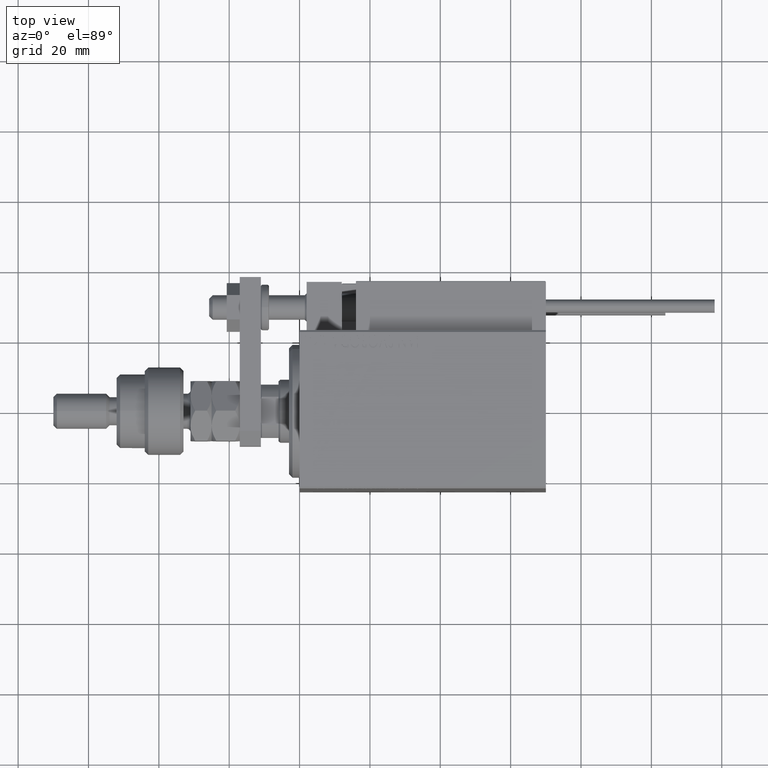
[diagram: clean part render]
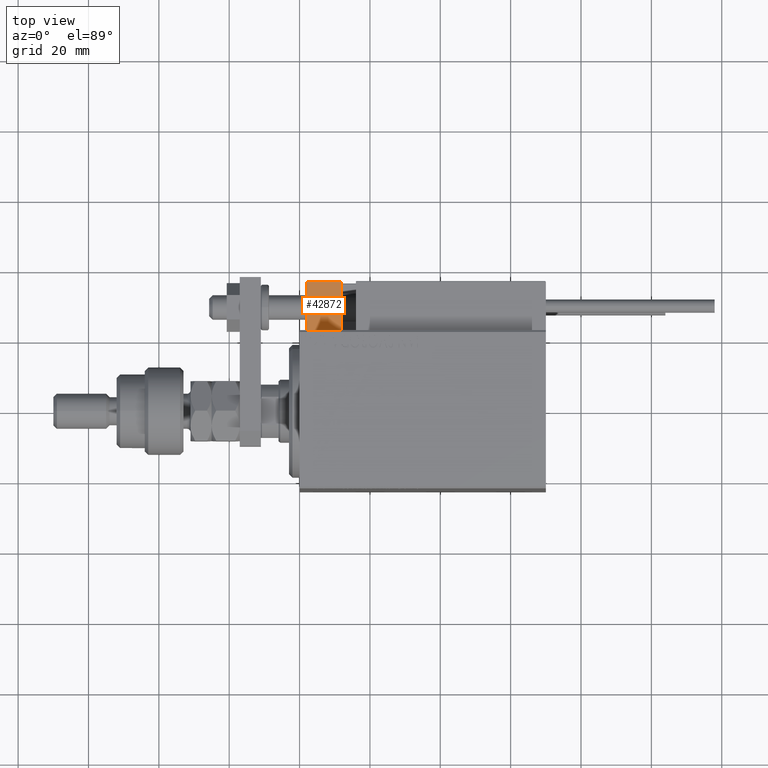
[diagram: same view with one face highlighted and labeled with its STEP entity id]
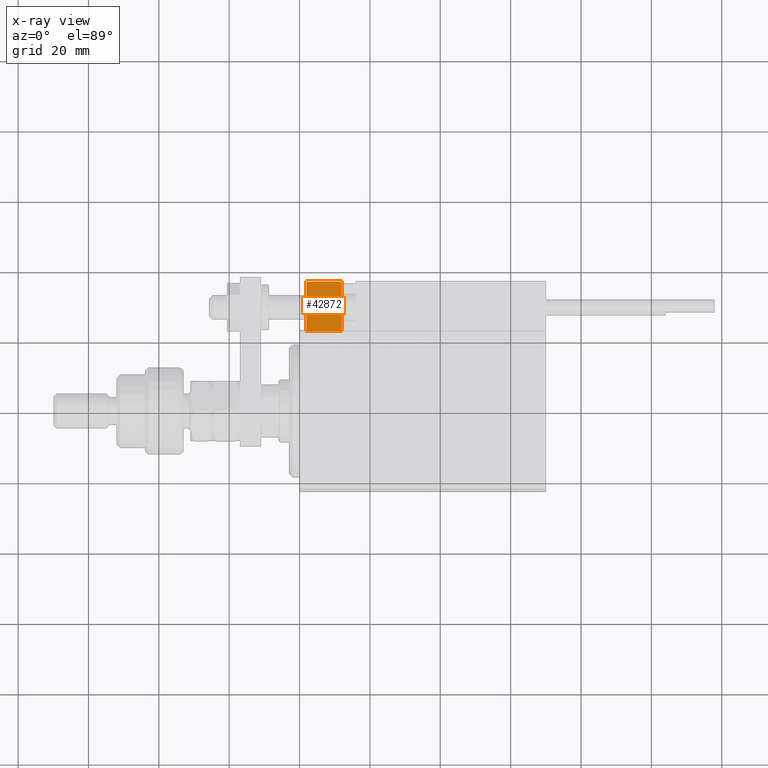
[diagram: x-ray of the same camera — body ghosted, the highlighted face saturated]
A machine part, top view. The second image highlights one B-rep face of the part: STEP entity #42872.
The next image is the same camera in x-ray: the body ghosted, the highlighted face saturated — about 0% of this face is hidden behind the body in this view.
In plain terms, the highlighted planar face has unit normal (0, 0, 1).
Its self-contained STEP definition (entity closure, byte-faithful):
#1140 = ORIENTED_EDGE ( 'NONE', *, *, #19329, .F. ) ;
#3274 = FACE_OUTER_BOUND ( 'NONE', #38804, .T. ) ;
#4070 = DIRECTION ( 'NONE',  ( 0.000000000000000000, 0.000000000000000000, -1.000000000000000000 ) ) ;
#4605 = EDGE_CURVE ( 'NONE', #13319, #45329, #29113, .T. ) ;
#6639 = ORIENTED_EDGE ( 'NONE', *, *, #4605, .F. ) ;
#9156 = EDGE_CURVE ( 'NONE', #13319, #43123, #48723, .T. ) ;
#10371 = VECTOR ( 'NONE', #19235, 1000.000000000000000 ) ;
#11945 = CARTESIAN_POINT ( 'NONE',  ( 0.000000000000000000, 7.000000000000000000, -16.00000000000000711 ) ) ;
#12483 = CARTESIAN_POINT ( 'NONE',  ( 10.00000000000000000, 7.000000000000000000, -16.00000000000000711 ) ) ;
#13319 = VERTEX_POINT ( 'NONE', #31320 ) ;
#14084 = VECTOR ( 'NONE', #23963, 1000.000000000000000 ) ;
#16144 = ORIENTED_EDGE ( 'NONE', *, *, #32549, .T. ) ;
#19045 = CARTESIAN_POINT ( 'NONE',  ( 10.00000000000000000, -7.000000000000000000, -16.00000000000000711 ) ) ;
#19235 = DIRECTION ( 'NONE',  ( -1.000000000000000000, -0.000000000000000000, -0.000000000000000000 ) ) ;
#19329 = EDGE_CURVE ( 'NONE', #45329, #45236, #28578, .T. ) ;
#19425 = ORIENTED_EDGE ( 'NONE', *, *, #9156, .T. ) ;
#19866 = VECTOR ( 'NONE', #45809, 1000.000000000000000 ) ;
#19903 = CARTESIAN_POINT ( 'NONE',  ( 10.00000000000000000, 7.000000000000000000, -16.00000000000000711 ) ) ;
#23668 = DIRECTION ( 'NONE',  ( -1.000000000000000000, 0.000000000000000000, -0.000000000000000000 ) ) ;
#23963 = DIRECTION ( 'NONE',  ( 0.000000000000000000, -1.000000000000000000, 0.000000000000000000 ) ) ;
#28525 = CARTESIAN_POINT ( 'NONE',  ( 10.00000000000000000, 7.000000000000000000, -16.00000000000000711 ) ) ;
#28578 = LINE ( 'NONE', #11945, #32320 ) ;
#29113 = LINE ( 'NONE', #12483, #19866 ) ;
#31303 = CARTESIAN_POINT ( 'NONE',  ( 0.000000000000000000, 7.000000000000000000, -16.00000000000000711 ) ) ;
#31320 = CARTESIAN_POINT ( 'NONE',  ( 10.00000000000000000, 7.000000000000000000, -16.00000000000000711 ) ) ;
#32132 = CARTESIAN_POINT ( 'NONE',  ( 10.00000000000000000, -7.000000000000000000, -16.00000000000000711 ) ) ;
#32278 = PLANE ( 'NONE',  #35069 ) ;
#32320 = VECTOR ( 'NONE', #49041, 1000.000000000000000 ) ;
#32549 = EDGE_CURVE ( 'NONE', #43123, #45236, #39666, .T. ) ;
#35069 = AXIS2_PLACEMENT_3D ( 'NONE', #19903, #4070, #23668 ) ;
#38804 = EDGE_LOOP ( 'NONE', ( #1140, #6639, #19425, #16144 ) ) ;
#39666 = LINE ( 'NONE', #32132, #10371 ) ;
#42872 = ADVANCED_FACE ( 'NONE', ( #3274 ), #32278, .T. ) ;
#43123 = VERTEX_POINT ( 'NONE', #19045 ) ;
#45236 = VERTEX_POINT ( 'NONE', #49387 ) ;
#45329 = VERTEX_POINT ( 'NONE', #31303 ) ;
#45809 = DIRECTION ( 'NONE',  ( -1.000000000000000000, -0.000000000000000000, -0.000000000000000000 ) ) ;
#48723 = LINE ( 'NONE', #28525, #14084 ) ;
#49041 = DIRECTION ( 'NONE',  ( 0.000000000000000000, -1.000000000000000000, 0.000000000000000000 ) ) ;
#49387 = CARTESIAN_POINT ( 'NONE',  ( 0.000000000000000000, -7.000000000000000000, -16.00000000000000711 ) ) ;